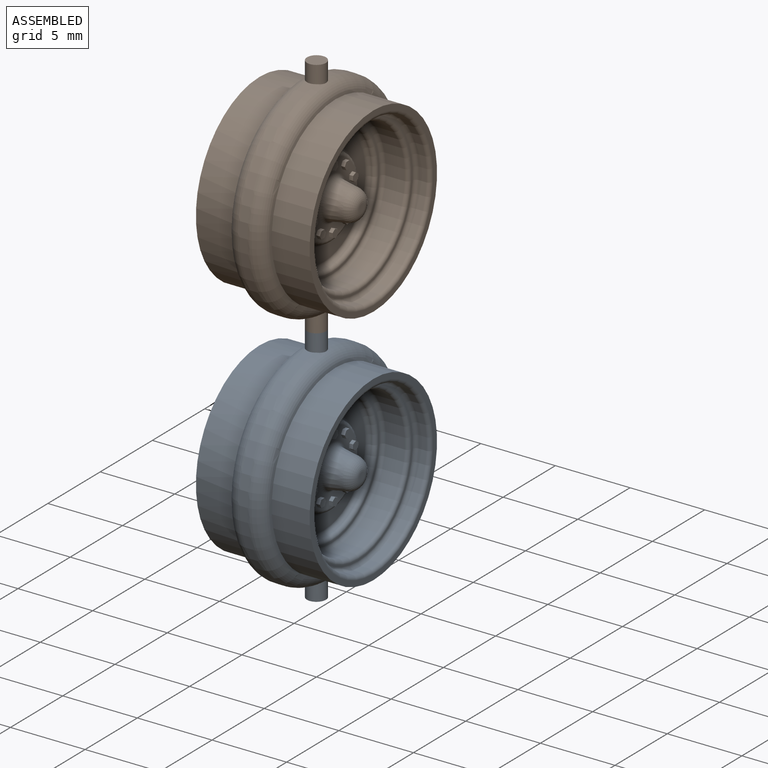
[diagram: assembled view]
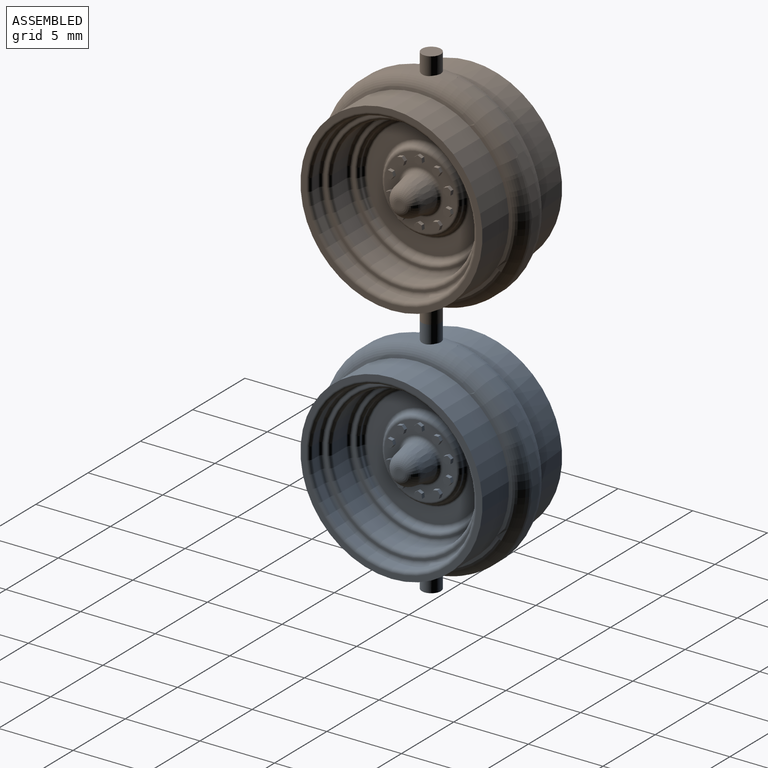
[diagram: assembled view, second angle]
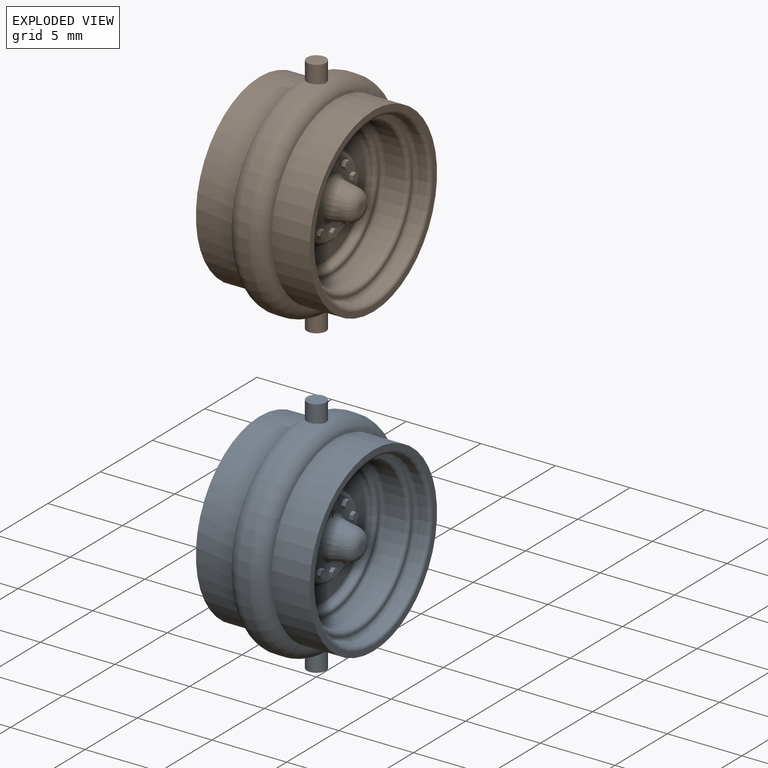
[diagram: exploded view]
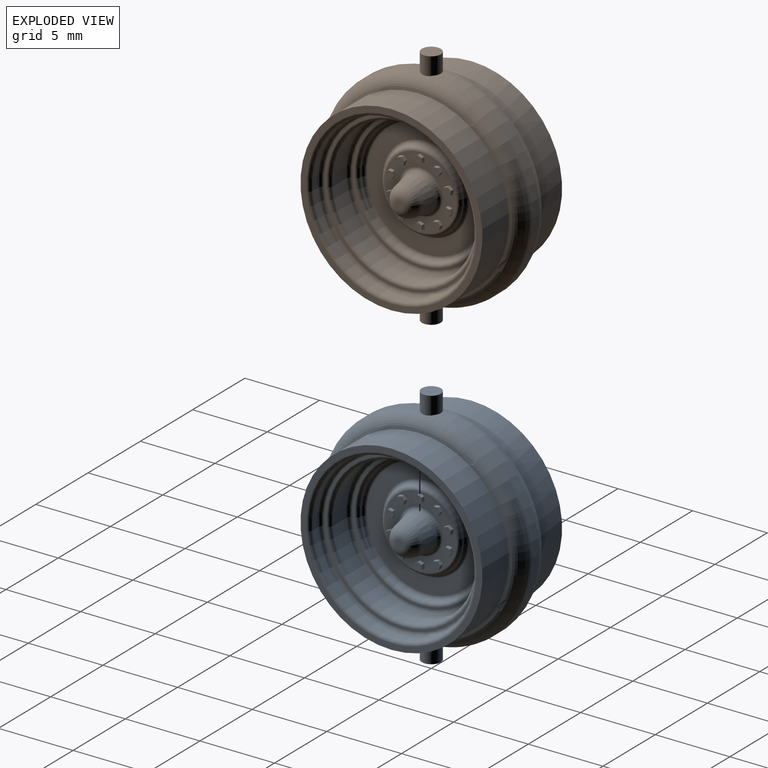
[diagram: exploded view, second angle]
ASSEMBLY  parts=2 mates=3
PART A: 110 faces, bbox 7.6x15.1x16.3 mm
  f0: cylinder r=6.99mm len=13.92mm, axis (-1,0,0), area 10.9mm2, adj f4,f5,f103,f107
  f1: cylinder r=5.46mm len=10.92mm, axis (-1,0,0), area 113.2mm2, adj f3,f10,f104,f108
  f2: cylinder r=6.99mm len=13.92mm, axis (-1,0,0), area 10.9mm2, adj f4,f5,f103,f107
  f3: plane 10.92x10.9mm, normal (-1,0,0), area 80.1mm2, adj f1,f98,f104,f105,f108,f109
  f4: torus R=5.97mm, axis (-1,0,0), area 60.9mm2, adj f0,f2,f7,f103,f107
  f5: torus R=5.97mm, axis (1,0,0), area 60.9mm2, adj f0,f2,f8,f103,f107
  f6: cylinder r=5.46mm len=10.92mm, axis (-1,0,0), area 17.4mm2, adj f93,f95
  f7: cylinder r=6.1mm len=12.19mm, axis (-1,0,0), area 97.3mm2, adj f4,f10
  f8: cylinder r=6.1mm len=12.19mm, axis (-1,0,0), area 97.3mm2, adj f5,f9
  f9: plane 12.19x12.19mm, normal (1,0,0), area 14.1mm2, adj f8,f95
  f10: plane 12.19x12.19mm, normal (-1,0,0), area 23.1mm2, adj f1,f7
  f11: cylinder r=4.83mm len=9.65mm, axis (-1,0,0), area 38.5mm2, adj f90,f94
  f12: plane 10.41x10.41mm, normal (1,0,0), area 4.1mm2, adj f93,f94
  f13: plane 9.14x9.14mm, normal (1,0,0), area 3.6mm2, adj f90,f91
  f14: plane 7.87x7.87mm, normal (1,0,0), area 21.9mm2, adj f89,f92
  f15: plane 4.83x4.83mm, normal (1,0,0), area 9.1mm2, adj f18,f19,f20,f21,f22,f23,f25,f26
  f16: cone r=1.27mm half-angle=10deg, axis (-1,0,0), area 8.6mm2, adj f96,f97
  f17: plane 0.54x0.54mm, normal (1,0,0), area 0.2mm2, adj f97
  f18: plane 0.25x0.24mm, normal (0,0.59,-0.81), area 0.1mm2, adj f15,f19,f23,f24
  f19: plane 0.29x0.25mm, normal (0,0.99,0.11), area 0.1mm2, adj f15,f18,f20,f24
  f20: plane 0.27x0.25mm, normal (0,0.4,0.91), area 0.1mm2, adj f15,f19,f21,f24
  f21: plane 0.25x0.24mm, normal (0,-0.59,0.81), area 0.1mm2, adj f15,f20,f22,f24
  f22: plane 0.29x0.25mm, normal (0,-0.99,-0.11), area 0.1mm2, adj f15,f21,f23,f24
  f23: plane 0.27x0.25mm, normal (0,-0.4,-0.91), area 0.1mm2, adj f15,f18,f22,f24
  f24: plane 0.58x0.54mm, normal (1,0,0), area 0.2mm2, adj f18,f19,f20,f21,f22,f23
  f25: plane 0.28x0.25mm, normal (0,0.95,-0.31), area 0.1mm2, adj f15,f26,f30,f31
  f26: plane 0.25x0.22mm, normal (0,0.74,0.67), area 0.1mm2, adj f15,f25,f27,f31
  f27: plane 0.29x0.25mm, normal (0,-0.21,0.98), area 0.1mm2, adj f15,f26,f28,f31
  f28: plane 0.28x0.25mm, normal (0,-0.95,0.31), area 0.1mm2, adj f15,f27,f29,f31
  f29: plane 0.25x0.22mm, normal (0,-0.74,-0.67), area 0.1mm2, adj f15,f28,f30,f31
  f30: plane 0.29x0.25mm, normal (0,0.21,-0.98), area 0.1mm2, adj f15,f25,f29,f31
  f31: plane 0.57x0.56mm, normal (1,0,0), area 0.2mm2, adj f25,f26,f27,f28,f29,f30
  f32: plane 0.28x0.25mm, normal (0,0.95,0.31), area 0.1mm2, adj f15,f33,f37,f38
  f33: plane 0.29x0.25mm, normal (0,0.2,0.98), area 0.1mm2, adj f15,f32,f34,f38
  f34: plane 0.25x0.22mm, normal (0,-0.75,0.67), area 0.1mm2, adj f15,f33,f35,f38
  f35: plane 0.28x0.25mm, normal (0,-0.95,-0.31), area 0.1mm2, adj f15,f34,f36,f38
  f36: plane 0.29x0.25mm, normal (0,-0.2,-0.98), area 0.1mm2, adj f15,f35,f37,f38
  f37: plane 0.25x0.22mm, normal (0,0.75,-0.67), area 0.1mm2, adj f15,f32,f36,f38
  f38: plane 0.57x0.56mm, normal (1,0,0), area 0.2mm2, adj f32,f33,f34,f35,f36,f37
  f39: plane 0.25x0.24mm, normal (0,0.59,0.81), area 0.1mm2, adj f15,f40,f44,f45
  f40: plane 0.27x0.25mm, normal (0,-0.41,0.91), area 0.1mm2, adj f15,f39,f41,f45
  f41: plane 0.29x0.25mm, normal (0,-0.99,0.1), area 0.1mm2, adj f15,f40,f42,f45
  f42: plane 0.25x0.24mm, normal (0,-0.59,-0.81), area 0.1mm2, adj f15,f41,f43,f45
  f43: plane 0.27x0.25mm, normal (0,0.41,-0.91), area 0.1mm2, adj f15,f42,f44,f45
  f44: plane 0.29x0.25mm, normal (0,0.99,-0.1), area 0.1mm2, adj f15,f39,f43,f45
  f45: plane 0.58x0.54mm, normal (1,0,0), area 0.2mm2, adj f39,f40,f41,f42,f43,f44
  f46: plane 0.29x0.25mm, normal (0,0,1), area 0.1mm2, adj f15,f47,f51,f52
  f47: plane 0.25x0.25mm, normal (0,-0.87,0.5), area 0.1mm2, adj f15,f46,f48,f52
  f48: plane 0.25x0.25mm, normal (0,-0.86,-0.5), area 0.1mm2, adj f15,f47,f49,f52
  f49: plane 0.29x0.25mm, normal (0,0,-1), area 0.1mm2, adj f15,f48,f50,f52
  f50: plane 0.25x0.25mm, normal (0,0.87,-0.5), area 0.1mm2, adj f15,f49,f51,f52
  f51: plane 0.25x0.25mm, normal (0,0.86,0.5), area 0.1mm2, adj f15,f46,f50,f52
  f52: plane 0.59x0.51mm, normal (1,0,0), area 0.2mm2, adj f46,f47,f48,f49,f50,f51
  f53: plane 0.25x0.24mm, normal (0,-0.59,0.81), area 0.1mm2, adj f15,f54,f58,f59
  f54: plane 0.29x0.25mm, normal (0,-0.99,-0.11), area 0.1mm2, adj f15,f53,f55,f59
  f55: plane 0.27x0.25mm, normal (0,-0.4,-0.91), area 0.1mm2, adj f15,f54,f56,f59
  f56: plane 0.25x0.24mm, normal (0,0.59,-0.81), area 0.1mm2, adj f15,f55,f57,f59
  f57: plane 0.29x0.25mm, normal (0,0.99,0.11), area 0.1mm2, adj f15,f56,f58,f59
  f58: plane 0.27x0.25mm, normal (0,0.4,0.91), area 0.1mm2, adj f15,f53,f57,f59
  f59: plane 0.58x0.54mm, normal (1,0,0), area 0.2mm2, adj f53,f54,f55,f56,f57,f58
  f60: plane 0.28x0.25mm, normal (0,-0.95,0.31), area 0.1mm2, adj f15,f61,f65,f66
  f61: plane 0.25x0.22mm, normal (0,-0.74,-0.67), area 0.1mm2, adj f15,f60,f62,f66
  f62: plane 0.29x0.25mm, normal (0,0.21,-0.98), area 0.1mm2, adj f15,f61,f63,f66
  f63: plane 0.28x0.25mm, normal (0,0.95,-0.31), area 0.1mm2, adj f15,f62,f64,f66
  f64: plane 0.25x0.22mm, normal (0,0.74,0.67), area 0.1mm2, adj f15,f63,f65,f66
  f65: plane 0.29x0.25mm, normal (0,-0.21,0.98), area 0.1mm2, adj f15,f60,f64,f66
  f66: plane 0.57x0.56mm, normal (1,0,0), area 0.2mm2, adj f60,f61,f62,f63,f64,f65
  f67: plane 0.28x0.25mm, normal (0,-0.95,-0.31), area 0.1mm2, adj f15,f68,f72,f73
  f68: plane 0.29x0.25mm, normal (0,-0.2,-0.98), area 0.1mm2, adj f15,f67,f69,f73
  f69: plane 0.25x0.22mm, normal (0,0.75,-0.67), area 0.1mm2, adj f15,f68,f70,f73
  f70: plane 0.28x0.25mm, normal (0,0.95,0.31), area 0.1mm2, adj f15,f69,f71,f73
  f71: plane 0.29x0.25mm, normal (0,0.2,0.98), area 0.1mm2, adj f15,f70,f72,f73
  f72: plane 0.25x0.22mm, normal (0,-0.75,0.67), area 0.1mm2, adj f15,f67,f71,f73
  f73: plane 0.57x0.56mm, normal (1,0,0), area 0.2mm2, adj f67,f68,f69,f70,f71,f72
  f74: plane 0.25x0.24mm, normal (0,-0.59,-0.81), area 0.1mm2, adj f15,f75,f79,f80
  f75: plane 0.27x0.25mm, normal (0,0.41,-0.91), area 0.1mm2, adj f15,f74,f76,f80
  f76: plane 0.29x0.25mm, normal (0,0.99,-0.1), area 0.1mm2, adj f15,f75,f77,f80
  f77: plane 0.25x0.24mm, normal (0,0.59,0.81), area 0.1mm2, adj f15,f76,f78,f80
  f78: plane 0.27x0.25mm, normal (0,-0.41,0.91), area 0.1mm2, adj f15,f77,f79,f80
  f79: plane 0.29x0.25mm, normal (0,-0.99,0.1), area 0.1mm2, adj f15,f74,f78,f80
  f80: plane 0.58x0.54mm, normal (1,0,0), area 0.2mm2, adj f74,f75,f76,f77,f78,f79
  f81: plane 0.29x0.25mm, normal (0,0,-1), area 0.1mm2, adj f15,f82,f86,f87
  f82: plane 0.25x0.25mm, normal (0,0.87,-0.5), area 0.1mm2, adj f15,f81,f83,f87
  f83: plane 0.25x0.25mm, normal (0,0.86,0.5), area 0.1mm2, adj f15,f82,f84,f87
  f84: plane 0.29x0.25mm, normal (0,0,1), area 0.1mm2, adj f15,f83,f85,f87
  f85: plane 0.25x0.25mm, normal (0,-0.87,0.5), area 0.1mm2, adj f15,f84,f86,f87
  f86: plane 0.25x0.25mm, normal (0,-0.86,-0.5), area 0.1mm2, adj f15,f81,f85,f87
  f87: plane 0.59x0.51mm, normal (1,0,0), area 0.2mm2, adj f81,f82,f83,f84,f85,f86
  f88: torus R=2.41mm, axis (1,0,0), area 6.5mm2, adj f15,f89
  f89: torus R=2.92mm, axis (-1,0,0), area 6.9mm2, adj f14,f88
  f90: torus R=4.57mm, axis (1,0,0), area 11.9mm2, adj f11,f13
  f91: torus R=4.45mm, axis (1,0,0), area 10.7mm2, adj f13,f92
  f92: torus R=3.94mm, axis (-1,0,0), area 10.3mm2, adj f14,f91
  f93: torus R=5.21mm, axis (1,0,0), area 13.5mm2, adj f6,f12
  f94: torus R=5.08mm, axis (1,0,0), area 12.3mm2, adj f11,f12
  f95: torus R=5.71mm, axis (1,0,0), area 13.9mm2, adj f6,f9
  f96: torus R=1.48mm, axis (1,0,0), area 3mm2, adj f15,f16
  f97: torus R=0.27mm, axis (1,0,0), area 4.8mm2, adj f16,f17
  f98: cylinder r=2.03mm len=4.06mm, axis (1,0,0), area 16.2mm2, adj f3,f99
  f99: plane 4.06x4.06mm, normal (-1,0,0), area 9.7mm2, adj f98,f101
  f100: plane 2.03x2.03mm, normal (-1,0,0), area 3.2mm2, adj f101
  f101: cylinder r=1.02mm len=2.03mm, axis (-1,0,0), area 13mm2, adj f99,f100
  f102: plane 1.27x1.27mm, normal (0,0,1), area 1.3mm2, adj f103
  f103: cylinder r=0.64mm len=1.27mm, axis (0,0,-1), area 4.7mm2, adj f0,f2,f4,f5,f102
  f104: cylinder r=0.64mm len=0.76mm, axis (0,0,-1), area 0.3mm2, adj f1,f3,f105
  f105: plane 0.76x0.13mm, normal (0,0,-1), area 0.1mm2, adj f3,f104
  f106: plane 1.27x1.27mm, normal (0,0,-1), area 1.3mm2, adj f107
  f107: cylinder r=0.64mm len=1.27mm, axis (0,0,1), area 4.7mm2, adj f0,f2,f4,f5,f106
  f108: cylinder r=0.64mm len=0.76mm, axis (0,0,1), area 0.3mm2, adj f1,f3,f109
  f109: plane 0.76x0.13mm, normal (0,0,1), area 0.1mm2, adj f3,f108
PART B: same geometry as A
PLACE A at identity fixed
PLACE B t=(0,0,16.26)mm
MATE planar A.f11 <-> B.f11  axis (1,0,0) through (3.81,0,0)mm
MATE planar A.f103 <-> B.f103  axis (0,0,1) through (0,0,8.13)mm
MATE cylindrical A.f103 <-> B.f103  axis (0,0,-1) through (0,0,7.52)mm
